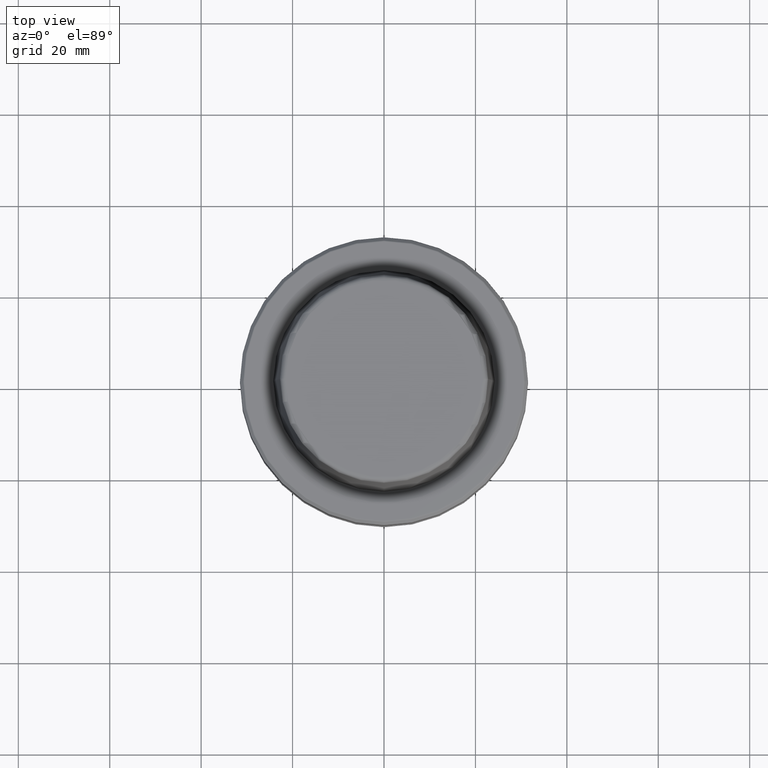
[diagram: clean part render]
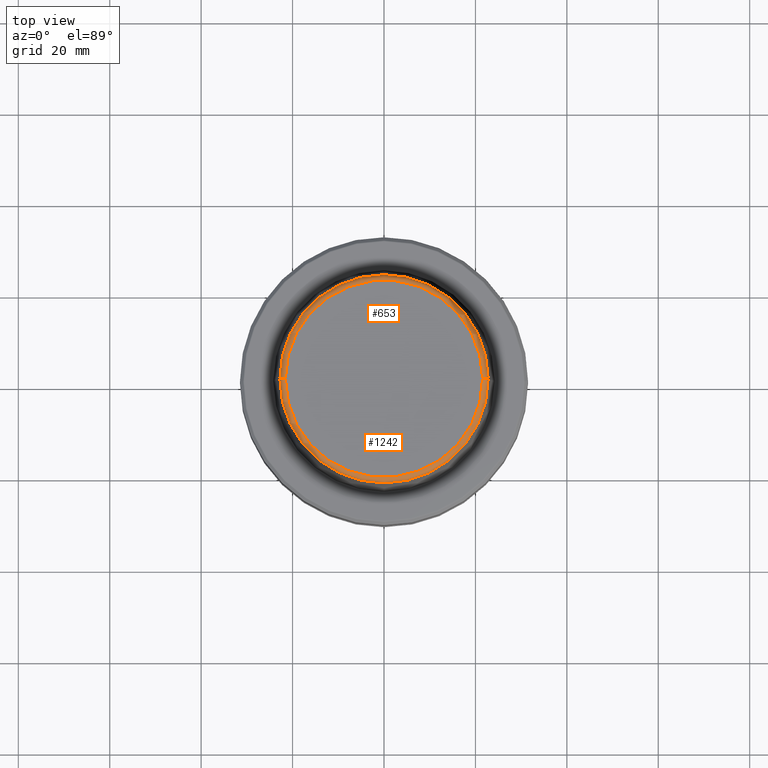
[diagram: same view with one multi-face feature highlighted, each face labeled with its STEP entity id]
A machine part, top view. The highlighted faces form ONE feature: a constant-radius fillet chain: 2 tangent blend faces with common blend radius 1.2 mm. The faces share edges in the B-rep.
Their STEP definitions:
[1] entity #653 (Torus):
#38 = AXIS2_PLACEMENT_3D ( 'NONE', #1066, #474, #1156 ) ;
#127 = CIRCLE ( 'NONE', #421, 1.200000000000003100 ) ;
#150 = VERTEX_POINT ( 'NONE', #927 ) ;
#180 = CIRCLE ( 'NONE', #1082, 21.58108272732117100 ) ;
#220 = CARTESIAN_POINT ( 'NONE',  ( 0.0000000000000000000, 0.0000000000000000000, 31.89999999999999900 ) ) ;
#269 = CARTESIAN_POINT ( 'NONE',  ( -22.77957961851797100, 0.0000000000000000000, 30.76004333261571900 ) ) ;
#270 = AXIS2_PLACEMENT_3D ( 'NONE', #856, #1153, #789 ) ;
#309 = ORIENTED_EDGE ( 'NONE', *, *, #405, .T. ) ;
#318 = DIRECTION ( 'NONE',  ( 1.000000000000000000, 0.0000000000000000000, 0.0000000000000000000 ) ) ;
#349 = AXIS2_PLACEMENT_3D ( 'NONE', #1040, #446, #1131 ) ;
#383 = CARTESIAN_POINT ( 'NONE',  ( -21.58108272732117100, 2.642920388414810300E-015, 30.69999999999999200 ) ) ;
#402 = EDGE_LOOP ( 'NONE', ( #706, #309, #991, #520 ) ) ;
#405 = EDGE_CURVE ( 'NONE', #635, #895, #127, .T. ) ;
#421 = AXIS2_PLACEMENT_3D ( 'NONE', #383, #1077, #975 ) ;
#446 = DIRECTION ( 'NONE',  ( -0.0000000000000000000, -0.0000000000000000000, 1.000000000000000000 ) ) ;
#474 = DIRECTION ( 'NONE',  ( 0.0000000000000000000, -1.000000000000000000, 0.0000000000000000000 ) ) ;
#520 = ORIENTED_EDGE ( 'NONE', *, *, #1048, .F. ) ;
#634 = TOROIDAL_SURFACE ( 'NONE', #270, 21.58108272732117100, 1.200000000000003100 ) ;
#635 = VERTEX_POINT ( 'NONE', #269 ) ;
#653 = ADVANCED_FACE ( 'NONE', ( #1136 ), #634, .T. ) ;
#706 = ORIENTED_EDGE ( 'NONE', *, *, #1079, .T. ) ;
#732 = CIRCLE ( 'NONE', #349, 22.77957961851797100 ) ;
#789 = DIRECTION ( 'NONE',  ( 1.000000000000000000, 0.0000000000000000000, 0.0000000000000000000 ) ) ;
#856 = CARTESIAN_POINT ( 'NONE',  ( 0.0000000000000000000, 0.0000000000000000000, 30.69999999999999200 ) ) ;
#889 = VERTEX_POINT ( 'NONE', #1000 ) ;
#895 = VERTEX_POINT ( 'NONE', #1185 ) ;
#906 = DIRECTION ( 'NONE',  ( -0.0000000000000000000, -0.0000000000000000000, 1.000000000000000000 ) ) ;
#927 = CARTESIAN_POINT ( 'NONE',  ( 22.77957961851797100, 2.876386432489616700E-015, 30.76004333261571900 ) ) ;
#975 = DIRECTION ( 'NONE',  ( -1.000000000000000000, 1.224646799147353200E-016, 0.0000000000000000000 ) ) ;
#991 = ORIENTED_EDGE ( 'NONE', *, *, #1223, .F. ) ;
#1000 = CARTESIAN_POINT ( 'NONE',  ( 21.58108272732117100, 0.0000000000000000000, 31.89999999999999900 ) ) ;
#1032 = CIRCLE ( 'NONE', #38, 1.200000000000003100 ) ;
#1040 = CARTESIAN_POINT ( 'NONE',  ( 0.0000000000000000000, 0.0000000000000000000, 30.76004333261571900 ) ) ;
#1048 = EDGE_CURVE ( 'NONE', #150, #889, #1032, .T. ) ;
#1066 = CARTESIAN_POINT ( 'NONE',  ( 21.58108272732117100, 0.0000000000000000000, 30.69999999999999200 ) ) ;
#1077 = DIRECTION ( 'NONE',  ( 1.224646799147353200E-016, 1.000000000000000000, 0.0000000000000000000 ) ) ;
#1079 = EDGE_CURVE ( 'NONE', #150, #635, #732, .T. ) ;
#1082 = AXIS2_PLACEMENT_3D ( 'NONE', #220, #906, #318 ) ;
#1131 = DIRECTION ( 'NONE',  ( 1.000000000000000000, 0.0000000000000000000, 0.0000000000000000000 ) ) ;
#1136 = FACE_OUTER_BOUND ( 'NONE', #402, .T. ) ;
#1153 = DIRECTION ( 'NONE',  ( -0.0000000000000000000, -0.0000000000000000000, 1.000000000000000000 ) ) ;
#1156 = DIRECTION ( 'NONE',  ( 0.0000000000000000000, 0.0000000000000000000, -1.000000000000000000 ) ) ;
#1185 = CARTESIAN_POINT ( 'NONE',  ( -21.58108272732117100, 2.716307157494421400E-015, 31.89999999999999900 ) ) ;
#1223 = EDGE_CURVE ( 'NONE', #889, #895, #180, .T. ) ;
[2] entity #1242 (Torus):
#38 = AXIS2_PLACEMENT_3D ( 'NONE', #1066, #474, #1156 ) ;
#47 = DIRECTION ( 'NONE',  ( -0.0000000000000000000, -0.0000000000000000000, 1.000000000000000000 ) ) ;
#71 = DIRECTION ( 'NONE',  ( 1.000000000000000000, 0.0000000000000000000, 0.0000000000000000000 ) ) ;
#88 = DIRECTION ( 'NONE',  ( 1.000000000000000000, 0.0000000000000000000, 0.0000000000000000000 ) ) ;
#127 = CIRCLE ( 'NONE', #421, 1.200000000000003100 ) ;
#131 = AXIS2_PLACEMENT_3D ( 'NONE', #823, #47, #1119 ) ;
#150 = VERTEX_POINT ( 'NONE', #927 ) ;
#166 = EDGE_LOOP ( 'NONE', ( #781, #568, #733, #1246 ) ) ;
#269 = CARTESIAN_POINT ( 'NONE',  ( -22.77957961851797100, 0.0000000000000000000, 30.76004333261571900 ) ) ;
#288 = EDGE_CURVE ( 'NONE', #635, #150, #1011, .T. ) ;
#324 = EDGE_CURVE ( 'NONE', #895, #889, #978, .T. ) ;
#383 = CARTESIAN_POINT ( 'NONE',  ( -21.58108272732117100, 2.642920388414810300E-015, 30.69999999999999200 ) ) ;
#404 = FACE_OUTER_BOUND ( 'NONE', #166, .T. ) ;
#405 = EDGE_CURVE ( 'NONE', #635, #895, #127, .T. ) ;
#421 = AXIS2_PLACEMENT_3D ( 'NONE', #383, #1077, #975 ) ;
#474 = DIRECTION ( 'NONE',  ( 0.0000000000000000000, -1.000000000000000000, 0.0000000000000000000 ) ) ;
#568 = ORIENTED_EDGE ( 'NONE', *, *, #288, .T. ) ;
#635 = VERTEX_POINT ( 'NONE', #269 ) ;
#638 = DIRECTION ( 'NONE',  ( -0.0000000000000000000, -0.0000000000000000000, 1.000000000000000000 ) ) ;
#663 = DIRECTION ( 'NONE',  ( -0.0000000000000000000, -0.0000000000000000000, 1.000000000000000000 ) ) ;
#733 = ORIENTED_EDGE ( 'NONE', *, *, #1048, .T. ) ;
#770 = AXIS2_PLACEMENT_3D ( 'NONE', #1241, #638, #71 ) ;
#781 = ORIENTED_EDGE ( 'NONE', *, *, #405, .F. ) ;
#823 = CARTESIAN_POINT ( 'NONE',  ( 0.0000000000000000000, 0.0000000000000000000, 30.69999999999999200 ) ) ;
#889 = VERTEX_POINT ( 'NONE', #1000 ) ;
#895 = VERTEX_POINT ( 'NONE', #1185 ) ;
#927 = CARTESIAN_POINT ( 'NONE',  ( 22.77957961851797100, 2.876386432489616700E-015, 30.76004333261571900 ) ) ;
#975 = DIRECTION ( 'NONE',  ( -1.000000000000000000, 1.224646799147353200E-016, 0.0000000000000000000 ) ) ;
#978 = CIRCLE ( 'NONE', #1109, 21.58108272732117100 ) ;
#1000 = CARTESIAN_POINT ( 'NONE',  ( 21.58108272732117100, 0.0000000000000000000, 31.89999999999999900 ) ) ;
#1011 = CIRCLE ( 'NONE', #770, 22.77957961851797100 ) ;
#1032 = CIRCLE ( 'NONE', #38, 1.200000000000003100 ) ;
#1048 = EDGE_CURVE ( 'NONE', #150, #889, #1032, .T. ) ;
#1066 = CARTESIAN_POINT ( 'NONE',  ( 21.58108272732117100, 0.0000000000000000000, 30.69999999999999200 ) ) ;
#1077 = DIRECTION ( 'NONE',  ( 1.224646799147353200E-016, 1.000000000000000000, 0.0000000000000000000 ) ) ;
#1109 = AXIS2_PLACEMENT_3D ( 'NONE', #1248, #663, #88 ) ;
#1119 = DIRECTION ( 'NONE',  ( 1.000000000000000000, 0.0000000000000000000, 0.0000000000000000000 ) ) ;
#1156 = DIRECTION ( 'NONE',  ( 0.0000000000000000000, 0.0000000000000000000, -1.000000000000000000 ) ) ;
#1160 = TOROIDAL_SURFACE ( 'NONE', #131, 21.58108272732117100, 1.200000000000003100 ) ;
#1185 = CARTESIAN_POINT ( 'NONE',  ( -21.58108272732117100, 2.716307157494421400E-015, 31.89999999999999900 ) ) ;
#1241 = CARTESIAN_POINT ( 'NONE',  ( 0.0000000000000000000, 0.0000000000000000000, 30.76004333261571900 ) ) ;
#1242 = ADVANCED_FACE ( 'NONE', ( #404 ), #1160, .T. ) ;
#1246 = ORIENTED_EDGE ( 'NONE', *, *, #324, .F. ) ;
#1248 = CARTESIAN_POINT ( 'NONE',  ( 0.0000000000000000000, 0.0000000000000000000, 31.89999999999999900 ) ) ;